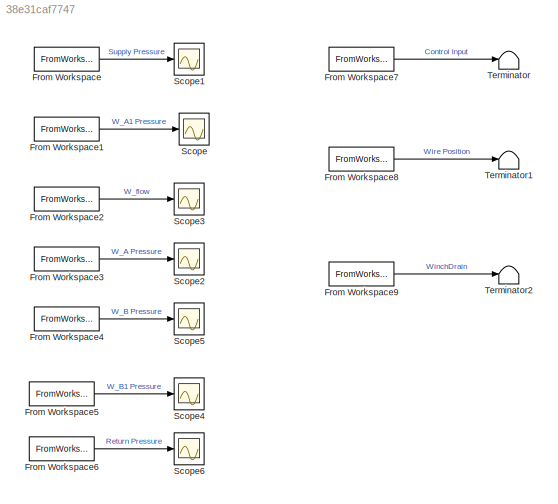
MODEL slx_38e31caf7747
KIND model
CONFIG AbsTol = auto
CONFIG EnableMultiTasking = off
CONFIG FixedStep = auto
CONFIG MaxStep = auto
CONFIG MinStep = auto
CONFIG RelTol = 1e-3
CONFIG SampleTimeConstraint = Unconstrained
CONFIG SolverName = VariableStepAuto
CONFIG StartTime = 0.0
CONFIG StopTime = 40
BLOCK [FromWorkspace] From Workspace
  SampleTime = 0.01
  VariableName = fSupply
BLOCK [FromWorkspace] From Workspace1
  SampleTime = 0.01
  VariableName = fWinchA1Pressure
BLOCK [FromWorkspace] From Workspace2
  SampleTime = 0.01
  VariableName = fWinchFlow
BLOCK [FromWorkspace] From Workspace3
  SampleTime = 0.01
  VariableName = fWinchAPressure
BLOCK [FromWorkspace] From Workspace4
  SampleTime = 0.01
  VariableName = fWinchBPressure
BLOCK [FromWorkspace] From Workspace5
  SampleTime = 0.01
  VariableName = fWinchB1Pressure
BLOCK [FromWorkspace] From Workspace6
  SampleTime = 0.01
  VariableName = fReturn
BLOCK [FromWorkspace] From Workspace7
  SampleTime = 0.01
  VariableName = fCtrlInput
BLOCK [FromWorkspace] From Workspace8
  SampleTime = 0.01
  VariableName = fWire
BLOCK [FromWorkspace] From Workspace9
  SampleTime = 0.01
  VariableName = fWinchDrainPressure
BLOCK [Scope] Scope
  Floating = off
  NumInputPorts = 1
  ScopeSpecificationString = Simulink.scopes.TimeScopeBlockCfg('CurrentConfiguration', extmgr.ConfigurationSet(extmgr.Configuration('Core','General UI',true),extmgr.Configuration('Core','Source UI',true),extmgr.Configuration('Sources','WiredSimulink',true),extmgr.Configuration('Visuals','Time Domain',true,'SerializedDisplays',{struct('MinYLimReal','-2.05084','MaxYLimReal','19.92248','YLabelReal','','MinYLimMag','0.00000','Max...<+1337ch>
BLOCK [Scope] Scope1
  Floating = off
  NumInputPorts = 1
  ScopeSpecificationString = Simulink.scopes.TimeScopeBlockCfg('CurrentConfiguration', extmgr.ConfigurationSet(extmgr.Configuration('Core','General UI',true),extmgr.Configuration('Core','Source UI',true),extmgr.Configuration('Sources','WiredSimulink',true,'DataLoggingVariableName','ScopeData1'),extmgr.Configuration('Visuals','Time Domain',true,'SerializedDisplays',{struct('MinYLimReal','62.79946','MaxYLimReal','75.08316','YLa...<+1380ch>
BLOCK [Scope] Scope2
  Floating = off
  NumInputPorts = 1
  ScopeSpecificationString = Simulink.scopes.TimeScopeBlockCfg('CurrentConfiguration', extmgr.ConfigurationSet(extmgr.Configuration('Core','General UI',true),extmgr.Configuration('Core','Source UI',true),extmgr.Configuration('Sources','WiredSimulink',true,'DataLoggingVariableName','ScopeData2'),extmgr.Configuration('Visuals','Time Domain',true,'SerializedDisplays',{struct('MinYLimReal','-1.75481','MaxYLimReal','16.4037','YLab...<+1371ch>
BLOCK [Scope] Scope3
  Floating = off
  NumInputPorts = 1
  ScopeSpecificationString = Simulink.scopes.TimeScopeBlockCfg('CurrentConfiguration', extmgr.ConfigurationSet(extmgr.Configuration('Core','General UI',true),extmgr.Configuration('Core','Source UI',true),extmgr.Configuration('Sources','WiredSimulink',true,'DataLoggingVariableName','ScopeData3'),extmgr.Configuration('Visuals','Time Domain',true,'SerializedDisplays',{struct('MinYLimReal','-13.13941','MaxYLimReal','10.19645','YL...<+1371ch>
BLOCK [Scope] Scope4
  Floating = off
  NumInputPorts = 1
  ScopeSpecificationString = Simulink.scopes.TimeScopeBlockCfg('CurrentConfiguration', extmgr.ConfigurationSet(extmgr.Configuration('Core','General UI',true),extmgr.Configuration('Core','Source UI',true),extmgr.Configuration('Sources','WiredSimulink',true,'DataLoggingVariableName','ScopeData4'),extmgr.Configuration('Visuals','Time Domain',true,'SerializedDisplays',{struct('MinYLimReal','-3.7141','MaxYLimReal','54.17951','YLab...<+1374ch>
BLOCK [Scope] Scope5
  Floating = off
  NumInputPorts = 1
  ScopeSpecificationString = Simulink.scopes.TimeScopeBlockCfg('CurrentConfiguration', extmgr.ConfigurationSet(extmgr.Configuration('Core','General UI',true),extmgr.Configuration('Core','Source UI',true),extmgr.Configuration('Sources','WiredSimulink',true,'DataLoggingVariableName','ScopeData5'),extmgr.Configuration('Visuals','Time Domain',true,'SerializedDisplays',{struct('MinYLimReal','-3.55846','MaxYLimReal','51.55797','YLa...<+1375ch>
BLOCK [Scope] Scope6
  Floating = off
  NumInputPorts = 1
  ScopeSpecificationString = Simulink.scopes.TimeScopeBlockCfg('CurrentConfiguration', extmgr.ConfigurationSet(extmgr.Configuration('Core','General UI',true),extmgr.Configuration('Core','Source UI',true),extmgr.Configuration('Sources','WiredSimulink',true,'DataLoggingVariableName','ScopeData6'),extmgr.Configuration('Visuals','Time Domain',true,'SerializedDisplays',{struct('MinYLimReal','0.07294','MaxYLimReal','1.67516','YLabe...<+1372ch>
BLOCK [Terminator] Terminator
BLOCK [Terminator] Terminator1
BLOCK [Terminator] Terminator2
LINE From Workspace1:1 -> Scope:1
LINE From Workspace2:1 -> Scope3:1
LINE From Workspace3:1 -> Scope2:1
LINE From Workspace4:1 -> Scope5:1
LINE From Workspace5:1 -> Scope4:1
LINE From Workspace6:1 -> Scope6:1
LINE From Workspace7:1 -> Terminator:1
LINE From Workspace8:1 -> Terminator1:1
LINE From Workspace9:1 -> Terminator2:1
LINE From Workspace:1 -> Scope1:1
